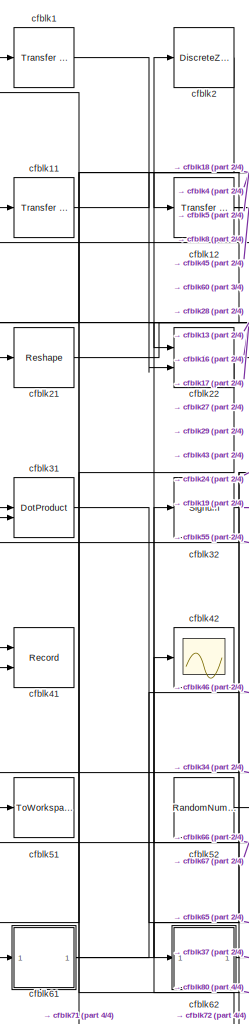
[diagram: root canvas - part 1/4, left side, full height]
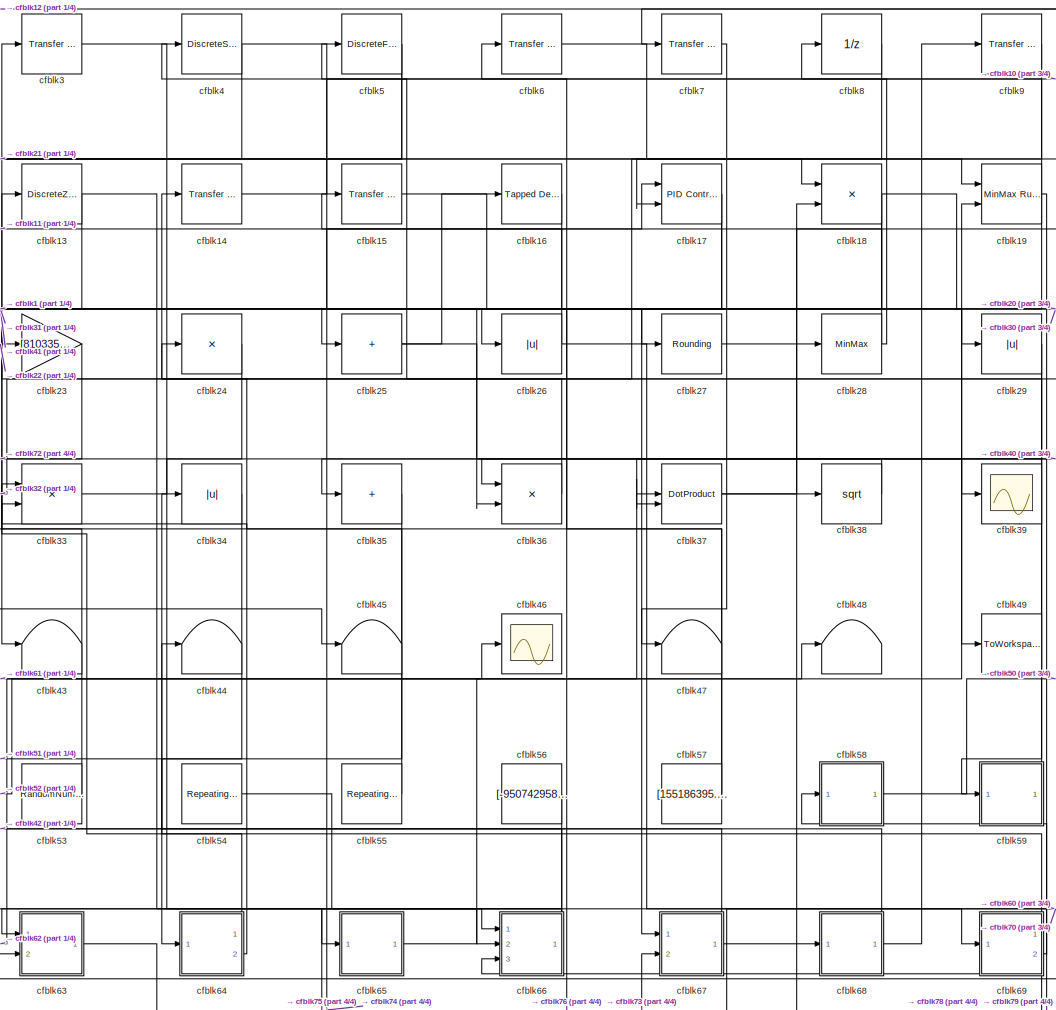
[diagram: root canvas - part 2/4, center side, full height]
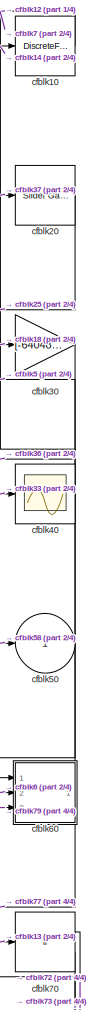
[diagram: root canvas - part 3/4, right side, full height]
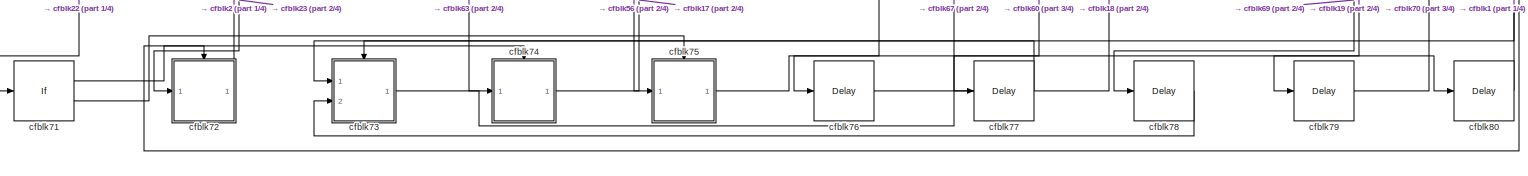
[diagram: root canvas - part 4/4, full width, bottom band]
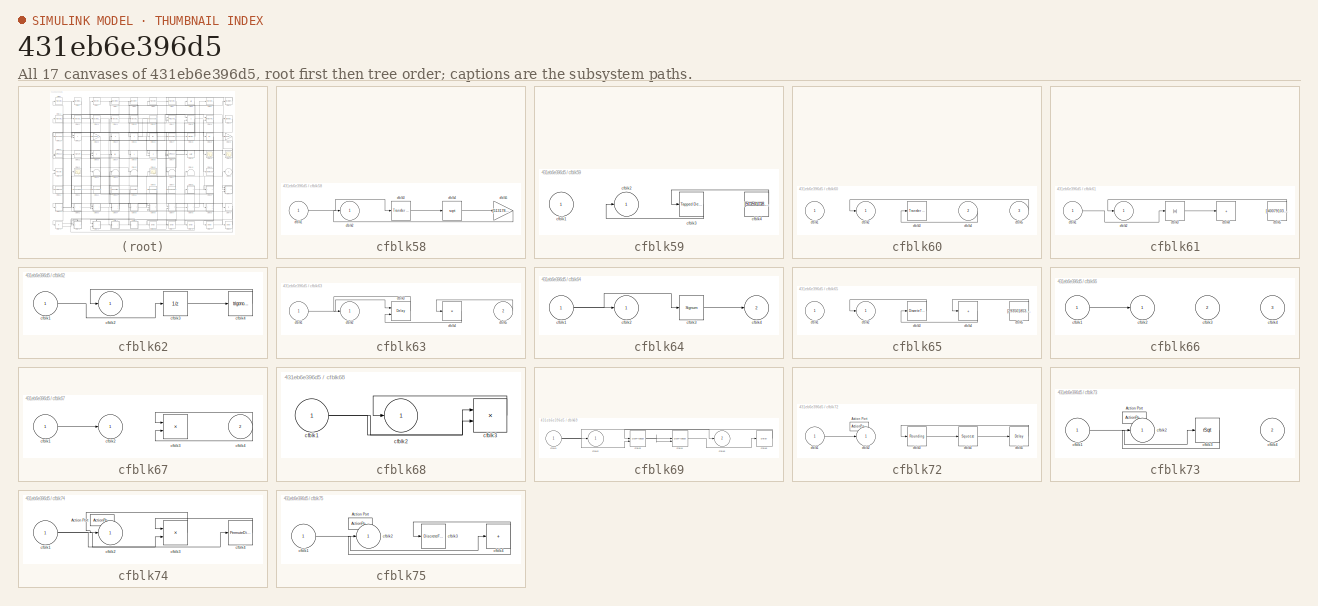
[diagram: thumbnail index - all 17 canvases of the model, root first then tree order]
MODEL slx_431eb6e396d5
KIND model
CONFIG AbsTol = auto
CONFIG EnableMultiTasking = off
CONFIG FixedStep = auto
CONFIG MaxStep = auto
CONFIG MinStep = auto
CONFIG RelTol = 1e-3
CONFIG SampleTimeConstraint = Unconstrained
CONFIG SolverName = VariableStepAuto
CONFIG StartTime = 0.0
CONFIG StopTime = 10.0
BLOCK [Reference] cfblk1  REF=simulink/Discrete/Transfer Fcn
Lead or Lag
  Ports = [1, 1]
  SourceBlock = simulink/Discrete/Transfer Fcn\nLead or Lag
  SourceProductBaseCode = SL
  SourceType = Lead or Lag Compensator
BLOCK [DiscreteFilter] cfblk10
  InputPortMap = u0
  Ports = [1, 1]
  SampleTime = 1
BLOCK [Reference] cfblk11  REF=simulink/Discrete/Transfer Fcn
First Order
  Ports = [1, 1]
  SourceBlock = simulink/Discrete/Transfer Fcn\nFirst Order
  SourceProductBaseCode = SL
  SourceType = First Order Transfer Fcn
BLOCK [Reference] cfblk12  REF=simulink/Discrete/Transfer Fcn
Real Zero
  Ports = [1, 1]
  SourceBlock = simulink/Discrete/Transfer Fcn\nReal Zero
  SourceProductBaseCode = SL
  SourceType = Transfer Fcn Real Zero
BLOCK [DiscreteZeroPole] cfblk13
  Gain = 1
  Poles = [0 0.5]
BLOCK [Reference] cfblk14  REF=simulink/Discrete/Transfer Fcn
Lead or Lag
  Ports = [1, 1]
  SourceBlock = simulink/Discrete/Transfer Fcn\nLead or Lag
  SourceProductBaseCode = SL
  SourceType = Lead or Lag Compensator
BLOCK [Reference] cfblk15  REF=simulink/Discrete/Transfer Fcn
Real Zero
  Ports = [1, 1]
  SourceBlock = simulink/Discrete/Transfer Fcn\nReal Zero
  SourceProductBaseCode = SL
  SourceType = Transfer Fcn Real Zero
BLOCK [Reference] cfblk16  REF=simulink/Discrete/Tapped Delay
  Ports = [1, 1]
  SourceBlock = simulink/Discrete/Tapped Delay
  SourceProductBaseCode = SL
  SourceType = Tapped Delay Line
BLOCK [Reference] cfblk17  REF=slpidlib/PID Controller (2DOF)
  Ports = [2, 1]
  SourceBlock = slpidlib/PID Controller (2DOF)
  SourceProductBaseCode = SL
  SourceType = PID 2dof
BLOCK [Product] cfblk18
  Inputs = **
  Ports = [2, 1]
BLOCK [Reference] cfblk19  REF=simulink/Math
Operations/MinMax
Running
Resettable
  Ports = [2, 1]
  SourceBlock = simulink/Math\nOperations/MinMax\nRunning\nResettable
  SourceProductBaseCode = SL
  SourceType = MinMax Running Resettable
BLOCK [DiscreteZeroPole] cfblk2
  Gain = 1
  Poles = [0 0.5]
BLOCK [Reference] cfblk20  REF=simulink/Math
Operations/Slider
Gain
  Ports = [1, 1]
  SourceBlock = simulink/Math\nOperations/Slider\nGain
  SourceProductBaseCode = SL
  SourceType = Slider Gain
BLOCK [Reshape] cfblk21
  Ports = [1, 1]
BLOCK [Sum] cfblk22
  IconShape = rectangular
  Ports = [2, 1]
BLOCK [Gain] cfblk23
  Gain = [810335419.637291]
BLOCK [Product] cfblk24
  Inputs = *
  Ports = [1, 1]
BLOCK [Sum] cfblk25
  IconShape = rectangular
  Inputs = +
  Ports = [1, 1]
BLOCK [Abs] cfblk26
  SaturateOnIntegerOverflow = off
BLOCK [Rounding] cfblk27
BLOCK [MinMax] cfblk28
  Function = max
  Ports = [1, 1]
BLOCK [Abs] cfblk29
  SaturateOnIntegerOverflow = off
BLOCK [Reference] cfblk3  REF=simulink/Discrete/Transfer Fcn
Lead or Lag
  Ports = [1, 1]
  SourceBlock = simulink/Discrete/Transfer Fcn\nLead or Lag
  SourceProductBaseCode = SL
  SourceType = Lead or Lag Compensator
BLOCK [Gain] cfblk30
  Gain = [-640485727.313963]
BLOCK [DotProduct] cfblk31
  OutDataTypeStr = Inherit: Inherit via internal rule
BLOCK [Signum] cfblk32
BLOCK [Product] cfblk33
  Ports = [2, 1]
BLOCK [Abs] cfblk34
  SaturateOnIntegerOverflow = off
BLOCK [Sum] cfblk35
  IconShape = rectangular
  Inputs = +
  Ports = [1, 1]
BLOCK [Product] cfblk36
  Inputs = **
  Ports = [2, 1]
BLOCK [DotProduct] cfblk37
  OutDataTypeStr = Inherit: Inherit via internal rule
BLOCK [Sqrt] cfblk38
BLOCK [Scope] cfblk39
  Floating = off
  NumInputPorts = 1
  Ports = [1]
BLOCK [DiscreteStateSpace] cfblk4
BLOCK [Scope] cfblk40
  Floating = off
  NumInputPorts = 1
  Ports = [1]
BLOCK [Record] cfblk41
  CompatibilityTag = XY
  FileSettingsInternal = {"entries":[{"content":{"excelSettings":{"content":{},"type":"Streamout.ExcelSettings"}},"type":"Streamout.FileSettingStorage","uuid":"84cf82fa-35bb-4254-a1fc-1f6b5955f86e"}],"packageUris":["http://schema.mathworks.com/mf0/streamout_blocks/R2020a"],"version":"1.0"}
  Layout = [1 1]
  Ports = [2]
  SignalsInternal = {"entries":[{"content":{"signals":[{"content":{"blockPath":["sampleModel104/cfblk41"],"channel":[],"dimensions":[1],"domain":"sampleModel104/cfblk41","lineColor":"#a2142f","plots":[1],"port":1,"sid":[""],"signalID":3732,"signalName":"cfblk16"},"type":"RecordBlkView.Signal","uuid":"75152f1e-4c02-4af2-84cf-784db9ba61d4"},{"content":{"blockPath":["sampleModel104/cfblk41"],"channel":[],"dimensions":[1...<+383ch>
  VisualizationBindings = {"xyplotplugin":{"info":[{"series":[{"bindingParametersList":[{"parameter":"X-Axis","signalID":3732,"signalName":"cfblk16"},{"parameter":"Y-Axis","signalID":3736,"signalName":"cfblk66"}],"seriesID":3868}],"subplotID":1}]}}
BLOCK [Scope] cfblk42
  Floating = off
  NumInputPorts = 1
  Ports = [1]
BLOCK [Terminator] cfblk43
BLOCK [Terminator] cfblk44
BLOCK [Terminator] cfblk45
BLOCK [Scope] cfblk46
  Floating = off
  NumInputPorts = 1
  Ports = [1]
BLOCK [Terminator] cfblk47
BLOCK [Terminator] cfblk48
BLOCK [ToWorkspace] cfblk49
  FixptAsFi = on
  MaxDataPoints = inf
  Ports = [1]
  SampleTime = -1
  SaveFormat = Timeseries
  VariableName = dppuwnp
BLOCK [DiscreteFir] cfblk5
  InputPortMap = u0
  OutputPortMap = o0
  Ports = [1, 1]
  SampleTime = 1
BLOCK [Outport] cfblk50
BLOCK [ToWorkspace] cfblk51
  FixptAsFi = on
  MaxDataPoints = inf
  Ports = [1]
  SampleTime = -1
  SaveFormat = Timeseries
  VariableName = ddmstjb
BLOCK [RandomNumber] cfblk52
  Mean = [-16667.436370]
  SampleTime = 0.1
  Seed = [56841479.000000]
  Variance = [47383.574054]
BLOCK [RandomNumber] cfblk53
  Mean = [25600.008098]
  SampleTime = 0.1
  Seed = [330531999.000000]
  Variance = [37838.678242]
BLOCK [Reference] cfblk54  REF=simulink/Sources/Repeating
Sequence
  Ports = [0, 1]
  SourceBlock = simulink/Sources/Repeating\nSequence
  SourceProductBaseCode = SL
  SourceType = Repeating table
BLOCK [Reference] cfblk55  REF=simulink/Sources/Repeating
Sequence
  Ports = [0, 1]
  SourceBlock = simulink/Sources/Repeating\nSequence
  SourceProductBaseCode = SL
  SourceType = Repeating table
BLOCK [Constant] cfblk56
  SampleTime = 1
  Value = [-950742958.140327]
BLOCK [Constant] cfblk57
  SampleTime = 1
  Value = [155186395.287171]
BLOCK [SubSystem] cfblk58
  Ports = [1, 1]
  RequestExecContextInheritance = off
BLOCK [Inport] cfblk58/cfblk1
BLOCK [Outport] cfblk58/cfblk2
BLOCK [Reference] cfblk58/cfblk3  REF=simulink/Discrete/Transfer Fcn
Lead or Lag
  Ports = [1, 1]
  SourceBlock = simulink/Discrete/Transfer Fcn\nLead or Lag
  SourceProductBaseCode = SL
  SourceType = Lead or Lag Compensator
BLOCK [Sqrt] cfblk58/cfblk4
BLOCK [Gain] cfblk58/cfblk5
  Gain = [513178523.903251]
BLOCK [SubSystem] cfblk59
  Ports = [1, 1]
  RequestExecContextInheritance = off
BLOCK [Inport] cfblk59/cfblk1
BLOCK [Outport] cfblk59/cfblk2
BLOCK [Reference] cfblk59/cfblk3  REF=simulink/Discrete/Tapped Delay
  Ports = [1, 1]
  SourceBlock = simulink/Discrete/Tapped Delay
  SourceProductBaseCode = SL
  SourceType = Tapped Delay Line
BLOCK [Constant] cfblk59/cfblk4
  SampleTime = 1
  Value = [503591038.763038]
BLOCK [Reference] cfblk6  REF=simulink/Discrete/Transfer Fcn
Lead or Lag
  Ports = [1, 1]
  SourceBlock = simulink/Discrete/Transfer Fcn\nLead or Lag
  SourceProductBaseCode = SL
  SourceType = Lead or Lag Compensator
BLOCK [SubSystem] cfblk60
  Ports = [3, 1]
  RequestExecContextInheritance = off
BLOCK [Inport] cfblk60/cfblk1
BLOCK [Outport] cfblk60/cfblk2
BLOCK [Reference] cfblk60/cfblk3  REF=simulink/Discrete/Transfer Fcn
Lead or Lag
  Ports = [1, 1]
  SourceBlock = simulink/Discrete/Transfer Fcn\nLead or Lag
  SourceProductBaseCode = SL
  SourceType = Lead or Lag Compensator
BLOCK [Inport] cfblk60/cfblk4
  Port = 2
BLOCK [Inport] cfblk60/cfblk5
  Port = 3
BLOCK [SubSystem] cfblk61
  Ports = [1, 1]
  RequestExecContextInheritance = off
BLOCK [Inport] cfblk61/cfblk1
BLOCK [Outport] cfblk61/cfblk2
BLOCK [Abs] cfblk61/cfblk3
  SaturateOnIntegerOverflow = off
BLOCK [Sum] cfblk61/cfblk4
  IconShape = rectangular
  Inputs = +
  Ports = [1, 1]
BLOCK [Constant] cfblk61/cfblk5
  SampleTime = 1
  Value = [-40079103.526450]
BLOCK [SubSystem] cfblk62
  Ports = [1, 1]
  RequestExecContextInheritance = off
BLOCK [Inport] cfblk62/cfblk1
BLOCK [Outport] cfblk62/cfblk2
BLOCK [UnitDelay] cfblk62/cfblk3
  HasFrameUpgradeWarning = on
BLOCK [Trigonometry] cfblk62/cfblk4
  Ports = [1, 1]
BLOCK [SubSystem] cfblk63
  Ports = [2, 1]
  RequestExecContextInheritance = off
BLOCK [Inport] cfblk63/cfblk1
BLOCK [Outport] cfblk63/cfblk2
BLOCK [Delay] cfblk63/cfblk3
  InputPortMap = u0,e6
  Ports = [2, 1]
  SampleTime = 1
  ShowEnablePort = on
BLOCK [Product] cfblk63/cfblk4
  Inputs = *
  Ports = [1, 1]
BLOCK [Inport] cfblk63/cfblk5
  Port = 2
BLOCK [SubSystem] cfblk64
  Ports = [1, 2]
  RequestExecContextInheritance = off
BLOCK [Inport] cfblk64/cfblk1
BLOCK [Outport] cfblk64/cfblk2
BLOCK [Signum] cfblk64/cfblk3
BLOCK [Outport] cfblk64/cfblk4
  Port = 2
BLOCK [SubSystem] cfblk65
  Ports = [1, 1]
  RequestExecContextInheritance = off
BLOCK [Inport] cfblk65/cfblk1
BLOCK [Outport] cfblk65/cfblk2
BLOCK [DiscreteTransferFcn] cfblk65/cfblk3
  InputPortMap = u0
  Ports = [1, 1]
  SampleTime = 1
BLOCK [Sum] cfblk65/cfblk4
  IconShape = rectangular
  Inputs = +
  Ports = [1, 1]
BLOCK [Constant] cfblk65/cfblk5
  SampleTime = 1
  Value = [293501853.012953]
BLOCK [SubSystem] cfblk66
  Ports = [3, 1]
  RequestExecContextInheritance = off
BLOCK [Inport] cfblk66/cfblk1
BLOCK [Outport] cfblk66/cfblk2
BLOCK [Inport] cfblk66/cfblk3
  Port = 2
BLOCK [Inport] cfblk66/cfblk4
  Port = 3
BLOCK [SubSystem] cfblk67
  Ports = [2, 1]
  RequestExecContextInheritance = off
BLOCK [Inport] cfblk67/cfblk1
BLOCK [Outport] cfblk67/cfblk2
BLOCK [Product] cfblk67/cfblk3
  Ports = [2, 1]
BLOCK [Inport] cfblk67/cfblk4
  Port = 2
BLOCK [SubSystem] cfblk68
  Ports = [1, 1]
  RequestExecContextInheritance = off
BLOCK [Inport] cfblk68/cfblk1
BLOCK [Outport] cfblk68/cfblk2
BLOCK [Product] cfblk68/cfblk3
  Inputs = **
  Ports = [2, 1]
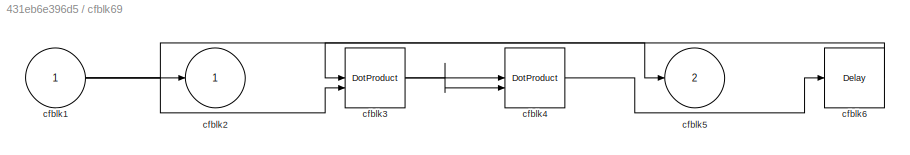
BLOCK [SubSystem] cfblk69
  Ports = [1, 2]
  RequestExecContextInheritance = off
BLOCK [Inport] cfblk69/cfblk1
BLOCK [Outport] cfblk69/cfblk2
BLOCK [DotProduct] cfblk69/cfblk3
  OutDataTypeStr = Inherit: Inherit via internal rule
BLOCK [DotProduct] cfblk69/cfblk4
  OutDataTypeStr = Inherit: Inherit via internal rule
BLOCK [Outport] cfblk69/cfblk5
  Port = 2
BLOCK [Delay] cfblk69/cfblk6
  InputPortMap = u0
  Ports = [1, 1]
  SampleTime = 1
BLOCK [Reference] cfblk7  REF=simulink/Discrete/Transfer Fcn
First Order
  Ports = [1, 1]
  SourceBlock = simulink/Discrete/Transfer Fcn\nFirst Order
  SourceProductBaseCode = SL
  SourceType = First Order Transfer Fcn
BLOCK [If] cfblk70
  IfExpression = u1 >= 0
  Ports = [1, 2]
  SampleTime = 1
BLOCK [If] cfblk71
  IfExpression = u1 >= 0
  Ports = [1, 2]
  SampleTime = 1
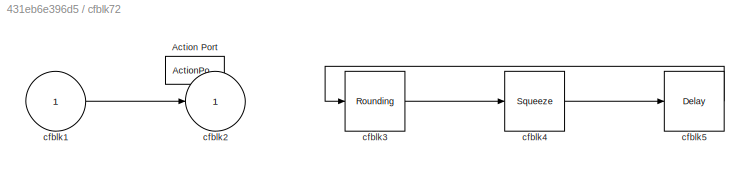
BLOCK [SubSystem] cfblk72
  Ports = [1, 1, 0, 0, 0, 0, 0, 1]
  RequestExecContextInheritance = off
  TreatAsAtomicUnit = on
BLOCK [ActionPort] cfblk72/Action Port
  ActionPortLabel = if(u1 >= 0)
BLOCK [Inport] cfblk72/cfblk1
BLOCK [Outport] cfblk72/cfblk2
BLOCK [Rounding] cfblk72/cfblk3
BLOCK [Squeeze] cfblk72/cfblk4
BLOCK [Delay] cfblk72/cfblk5
  InputPortMap = u0
  Ports = [1, 1]
BLOCK [SubSystem] cfblk73
  Ports = [2, 1, 0, 0, 0, 0, 0, 1]
  RequestExecContextInheritance = off
  TreatAsAtomicUnit = on
BLOCK [ActionPort] cfblk73/Action Port
  ActionPortLabel = else
BLOCK [Inport] cfblk73/cfblk1
BLOCK [Outport] cfblk73/cfblk2
BLOCK [Sqrt] cfblk73/cfblk3
  AlgorithmType = Newton-Raphson
  Operator = rSqrt
BLOCK [Inport] cfblk73/cfblk4
  Port = 2
BLOCK [SubSystem] cfblk74
  Ports = [1, 1, 0, 0, 0, 0, 0, 1]
  RequestExecContextInheritance = off
  TreatAsAtomicUnit = on
BLOCK [ActionPort] cfblk74/Action Port
  ActionPortLabel = if(u1 >= 0)
BLOCK [Inport] cfblk74/cfblk1
BLOCK [Outport] cfblk74/cfblk2
BLOCK [Product] cfblk74/cfblk3
  Ports = [2, 1]
BLOCK [PermuteDimensions] cfblk74/cfblk4
BLOCK [SubSystem] cfblk75
  Ports = [1, 1, 0, 0, 0, 0, 0, 1]
  RequestExecContextInheritance = off
  TreatAsAtomicUnit = on
BLOCK [ActionPort] cfblk75/Action Port
  ActionPortLabel = else
BLOCK [Inport] cfblk75/cfblk1
BLOCK [Outport] cfblk75/cfblk2
BLOCK [DiscreteFilter] cfblk75/cfblk3
  InputPortMap = u0
  Ports = [1, 1]
BLOCK [Sum] cfblk75/cfblk4
  IconShape = rectangular
  Inputs = +
  Ports = [1, 1]
BLOCK [Delay] cfblk76
  InputPortMap = u0
  Ports = [1, 1]
  SampleTime = 1
BLOCK [Delay] cfblk77
  InputPortMap = u0
  Ports = [1, 1]
  SampleTime = 1
BLOCK [Delay] cfblk78
  InputPortMap = u0
  Ports = [1, 1]
  SampleTime = 1
BLOCK [Delay] cfblk79
  InputPortMap = u0
  Ports = [1, 1]
  SampleTime = 1
BLOCK [UnitDelay] cfblk8
  HasFrameUpgradeWarning = on
BLOCK [Delay] cfblk80
  InputPortMap = u0
  Ports = [1, 1]
  SampleTime = 1
BLOCK [Reference] cfblk9  REF=simulink/Discrete/Transfer Fcn
First Order
  Ports = [1, 1]
  SourceBlock = simulink/Discrete/Transfer Fcn\nFirst Order
  SourceProductBaseCode = SL
  SourceType = First Order Transfer Fcn
LINE cfblk10:1 -> cfblk7:1
LINE cfblk11:1 -> cfblk18:1
NET cfblk12:1 -> cfblk45:1, cfblk60:1
NET cfblk13:1 -> cfblk22:2, cfblk70:1
LINE cfblk14:1 -> cfblk10:1
LINE cfblk15:1 -> cfblk49:1
LINE cfblk16:1 -> cfblk41:1
NET cfblk17:1 -> cfblk31:1, cfblk76:1
NET cfblk18:1 -> cfblk23:1, cfblk30:1, cfblk67:1
NET cfblk19:1 -> cfblk26:1, cfblk4:1, cfblk79:1
LINE cfblk1:1 -> cfblk27:1
LINE cfblk20:1 -> cfblk25:1
LINE cfblk21:1 -> cfblk29:1
NET cfblk22:1 -> cfblk43:1, cfblk71:1
LINE cfblk23:1 -> cfblk72:1
LINE cfblk24:1 -> cfblk62:1
NET cfblk25:1 -> cfblk16:1, cfblk39:1
NET cfblk26:1 -> cfblk15:1, cfblk69:1
LINE cfblk27:1 -> cfblk28:1
NET cfblk28:1 -> cfblk11:1, cfblk8:1
NET cfblk29:1 -> cfblk37:2, cfblk59:1
LINE cfblk2:1 -> cfblk12:1
LINE cfblk30:1 -> cfblk36:1
LINE cfblk31:1 -> cfblk65:1
LINE cfblk32:1 -> cfblk19:1
LINE cfblk33:1 -> cfblk40:1
LINE cfblk34:1 -> cfblk51:1
LINE cfblk35:1 -> cfblk64:1
LINE cfblk36:1 -> cfblk3:1
NET cfblk37:1 -> cfblk20:1, cfblk38:1
LINE cfblk38:1 -> cfblk35:1
LINE cfblk3:1 -> cfblk66:1
NET cfblk4:1 -> cfblk21:1, cfblk36:2
LINE cfblk52:1 -> cfblk19:2
LINE cfblk53:1 -> cfblk13:1
LINE cfblk54:1 -> cfblk66:2
LINE cfblk55:1 -> cfblk31:2
LINE cfblk56:1 -> cfblk75:1
NET cfblk57:1 -> cfblk24:1, cfblk6:1
LINE cfblk58/cfblk1:1 -> cfblk58/cfblk3:1
LINE cfblk58/cfblk3:1 -> cfblk58/cfblk4:1
LINE cfblk58/cfblk4:1 -> cfblk58/cfblk5:1
LINE cfblk58/cfblk5:1 -> cfblk58/cfblk2:1
LINE cfblk58:1 -> cfblk50:1
LINE cfblk59/cfblk3:1 -> cfblk59/cfblk2:1
LINE cfblk59/cfblk4:1 -> cfblk59/cfblk3:1
LINE cfblk59:1 -> cfblk14:1
NET cfblk5:1 -> cfblk61:1, cfblk63:2
LINE cfblk60/cfblk4:1 -> cfblk60/cfblk3:1
LINE cfblk60/cfblk5:1 -> cfblk60/cfblk2:1
NET cfblk60:1 -> cfblk5:1, cfblk77:1
LINE cfblk61/cfblk1:1 -> cfblk61/cfblk3:1
LINE cfblk61/cfblk3:1 -> cfblk61/cfblk4:1
LINE cfblk61/cfblk5:1 -> cfblk61/cfblk2:1
NET cfblk61:1 -> cfblk32:1, cfblk46:1
LINE cfblk62/cfblk1:1 -> cfblk62/cfblk3:1
LINE cfblk62/cfblk3:1 -> cfblk62/cfblk4:1
LINE cfblk62/cfblk4:1 -> cfblk62/cfblk2:1
LINE cfblk62:1 -> cfblk37:1
LINE cfblk63/cfblk1:1 -> cfblk63/cfblk3:1
LINE cfblk63/cfblk3:1 -> cfblk63/cfblk2:1
LINE cfblk63/cfblk4:1 -> cfblk63/cfblk3:2
LINE cfblk63/cfblk5:1 -> cfblk63/cfblk4:1
LINE cfblk63:1 -> cfblk74:1
NET cfblk64/cfblk1:1 -> cfblk64/cfblk2:1, cfblk64/cfblk3:1
LINE cfblk64/cfblk3:1 -> cfblk64/cfblk4:1
LINE cfblk64:1 -> cfblk33:1
LINE cfblk64:2 -> cfblk33:2
LINE cfblk65/cfblk3:1 -> cfblk65/cfblk2:1
LINE cfblk65/cfblk4:1 -> cfblk65/cfblk3:1
LINE cfblk65/cfblk5:1 -> cfblk65/cfblk4:1
LINE cfblk65:1 -> cfblk48:1
LINE cfblk66/cfblk1:1 -> cfblk66/cfblk2:1
NET cfblk66:1 -> cfblk41:2, cfblk63:1
LINE cfblk67/cfblk1:1 -> cfblk67/cfblk2:1
NET cfblk67/cfblk4:1 -> cfblk67/cfblk3:1, cfblk67/cfblk3:2
NET cfblk67:1 -> cfblk42:1, cfblk68:1
NET cfblk68/cfblk1:1 -> cfblk68/cfblk3:1, cfblk68/cfblk3:2
LINE cfblk68/cfblk3:1 -> cfblk68/cfblk2:1
NET cfblk68:1 -> cfblk44:1, cfblk9:1
NET cfblk69/cfblk1:1 -> cfblk69/cfblk2:1, cfblk69/cfblk3:2, cfblk69/cfblk5:1
NET cfblk69/cfblk3:1 -> cfblk69/cfblk4:1, cfblk69/cfblk4:2
LINE cfblk69/cfblk4:1 -> cfblk69/cfblk6:1
LINE cfblk69/cfblk6:1 -> cfblk69/cfblk3:1
LINE cfblk69:1 -> cfblk34:1
NET cfblk69:2 -> cfblk58:1, cfblk66:3, cfblk78:1
LINE cfblk6:1 -> cfblk60:2
LINE cfblk70:1 -> cfblk72:ifaction
LINE cfblk70:2 -> cfblk73:ifaction
LINE cfblk71:1 -> cfblk74:ifaction
LINE cfblk71:2 -> cfblk75:ifaction
LINE cfblk72/cfblk1:1 -> cfblk72/cfblk2:1
LINE cfblk72/cfblk3:1 -> cfblk72/cfblk4:1
LINE cfblk72/cfblk4:1 -> cfblk72/cfblk5:1
LINE cfblk72/cfblk5:1 -> cfblk72/cfblk3:1
LINE cfblk72:1 -> cfblk2:1
LINE cfblk73/cfblk1:1 -> cfblk73/cfblk3:1
LINE cfblk73/cfblk3:1 -> cfblk73/cfblk2:1
LINE cfblk73:1 -> cfblk67:2
NET cfblk74/cfblk1:1 -> cfblk74/cfblk3:2, cfblk74/cfblk4:1
LINE cfblk74/cfblk3:1 -> cfblk74/cfblk2:1
LINE cfblk74/cfblk4:1 -> cfblk74/cfblk3:1
LINE cfblk74:1 -> cfblk17:1
LINE cfblk75/cfblk1:1 -> cfblk75/cfblk4:1
NET cfblk75/cfblk4:1 -> cfblk75/cfblk2:1, cfblk75/cfblk3:1
LINE cfblk75:1 -> cfblk80:1
LINE cfblk76:1 -> cfblk18:2
LINE cfblk77:1 -> cfblk73:1
LINE cfblk78:1 -> cfblk73:2
LINE cfblk79:1 -> cfblk60:3
LINE cfblk7:1 -> cfblk47:1
LINE cfblk80:1 -> cfblk1:1
LINE cfblk8:1 -> cfblk22:1
LINE cfblk9:1 -> cfblk17:2
note: NET lines group one-source signal fan-out (src -> all destinations, sorted); 1:1 wires keep LINE
